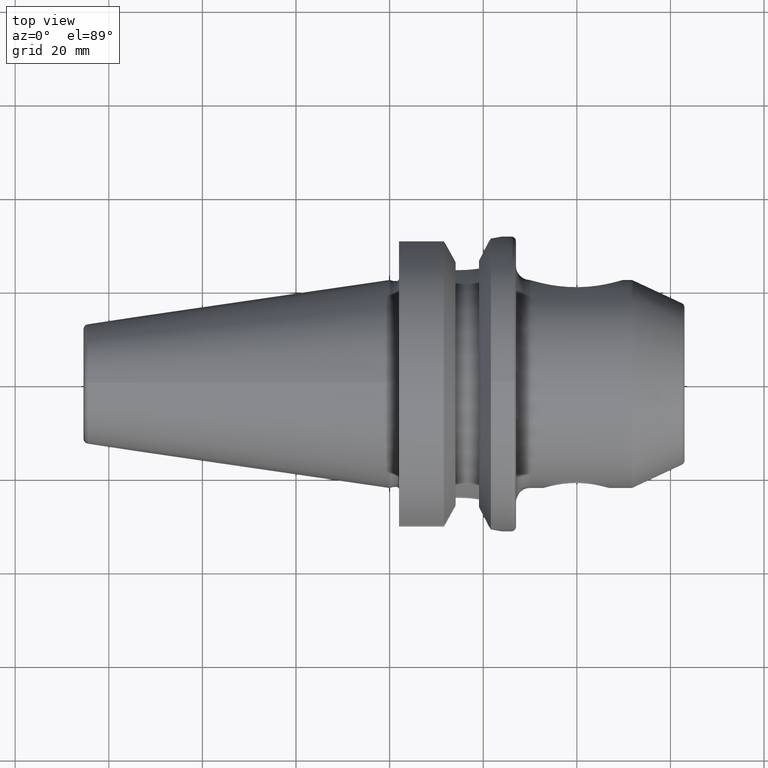
[diagram: clean part render]
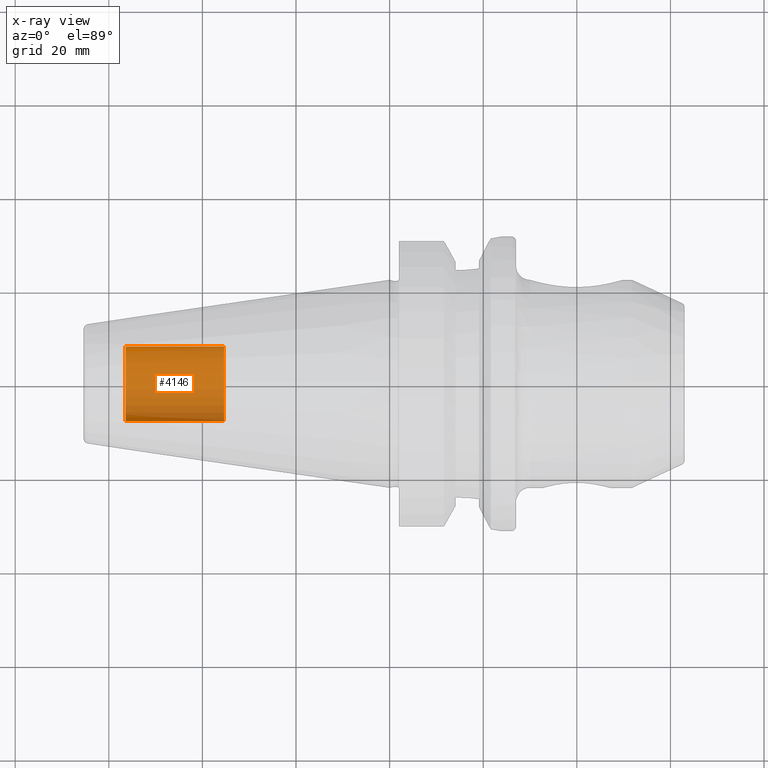
[diagram: x-ray — body ghosted, one internal face saturated and labeled with its STEP entity id]
A machine part, top view, then the same camera in x-ray: the body is ghosted and one INTERNAL B-rep face — a face not visible from any outside direction — is saturated and labeled: STEP entity #4146.
In plain terms, the highlighted cylindrical surface (partial cylindrical patch) has radius 8 mm, axis along (-1, 0, 0).
Its self-contained STEP definition (entity closure, byte-faithful):
#4081=CARTESIAN_POINT('',(-5.64E1,0.E0,0.E0));
#4082=DIRECTION('',(1.E0,0.E0,0.E0));
#4083=DIRECTION('',(0.E0,-1.E0,0.E0));
#4084=AXIS2_PLACEMENT_3D('',#4081,#4082,#4083);
#4091=DIRECTION('',(1.E0,0.E0,0.E0));
#4092=VECTOR('',#4091,2.1E1);
#4093=CARTESIAN_POINT('',(-5.64E1,-8.E0,0.E0));
#4094=LINE('',#4093,#4092);
#4095=DIRECTION('',(1.E0,0.E0,0.E0));
#4096=VECTOR('',#4095,2.1E1);
#4097=CARTESIAN_POINT('',(-5.64E1,8.E0,0.E0));
#4098=LINE('',#4097,#4096);
#4104=CARTESIAN_POINT('',(-3.54E1,0.E0,0.E0));
#4105=DIRECTION('',(-1.E0,0.E0,0.E0));
#4106=DIRECTION('',(0.E0,1.E0,0.E0));
#4107=AXIS2_PLACEMENT_3D('',#4104,#4105,#4106);
#4119=CARTESIAN_POINT('',(-3.54E1,8.E0,0.E0));
#4120=CARTESIAN_POINT('',(-3.54E1,-8.E0,0.E0));
#4121=VERTEX_POINT('',#4119);
#4122=VERTEX_POINT('',#4120);
#4123=CARTESIAN_POINT('',(-5.64E1,8.E0,0.E0));
#4124=CARTESIAN_POINT('',(-5.64E1,-8.E0,0.E0));
#4125=VERTEX_POINT('',#4123);
#4126=VERTEX_POINT('',#4124);
#4131=CARTESIAN_POINT('',(-1.373367445015E1,0.E0,0.E0));
#4132=DIRECTION('',(-1.E0,0.E0,0.E0));
#4133=DIRECTION('',(0.E0,1.E0,0.E0));
#4134=AXIS2_PLACEMENT_3D('',#4131,#4132,#4133);
#4135=CYLINDRICAL_SURFACE('',#4134,8.E0);
#4137=ORIENTED_EDGE('',*,*,#4136,.T.);
#4139=ORIENTED_EDGE('',*,*,#4138,.T.);
#4141=ORIENTED_EDGE('',*,*,#4140,.T.);
#4143=ORIENTED_EDGE('',*,*,#4142,.F.);
#4144=EDGE_LOOP('',(#4137,#4139,#4141,#4143));
#4145=FACE_OUTER_BOUND('',#4144,.F.);
#4146=ADVANCED_FACE('',(#4145),#4135,.F.);
#4085=CIRCLE('',#4084,8.E0);
#4108=CIRCLE('',#4107,8.E0);
#4136=EDGE_CURVE('',#4126,#4125,#4085,.T.);
#4138=EDGE_CURVE('',#4125,#4121,#4098,.T.);
#4140=EDGE_CURVE('',#4121,#4122,#4108,.T.);
#4142=EDGE_CURVE('',#4126,#4122,#4094,.T.);